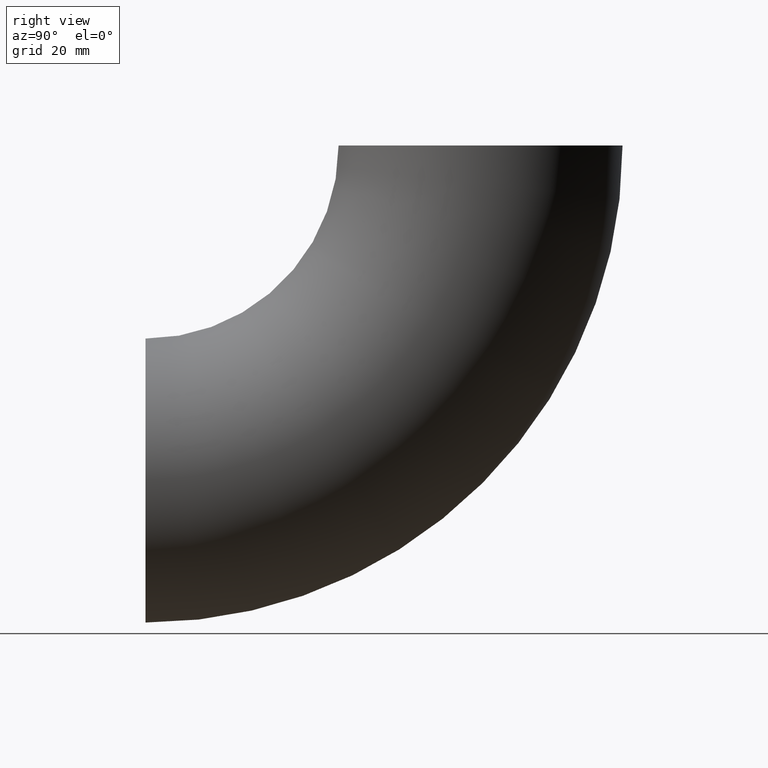
[diagram: clean part render]
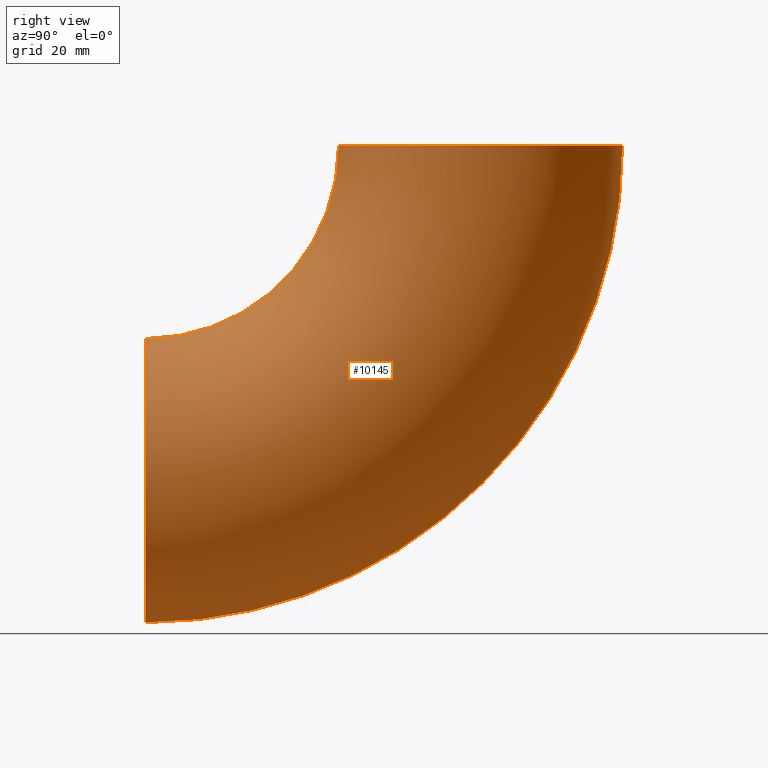
[diagram: same view with one face highlighted and labeled with its STEP entity id]
A machine part, right view. The second image highlights one B-rep face of the part: STEP entity #10145.
In plain terms, the highlighted toroidal blend (fillet) surface has major radius 57 mm and minor (blend) radius 24.15 mm.
Its self-contained STEP definition (entity closure, byte-faithful):
#124 = CARTESIAN_POINT ( 'NONE',  ( 0.0000000000000000000, 57.00000000000000000, -3.490243377569956500E-015 ) ) ;
#188 = VERTEX_POINT ( 'NONE', #1510 ) ;
#420 = ORIENTED_EDGE ( 'NONE', *, *, #1777, .F. ) ;
#450 = DIRECTION ( 'NONE',  ( -1.000000000000000000, -0.0000000000000000000, -0.0000000000000000000 ) ) ;
#1185 = CARTESIAN_POINT ( 'NONE',  ( 0.0000000000000000000, 0.0000000000000000000, 0.0000000000000000000 ) ) ;
#1425 = CARTESIAN_POINT ( 'NONE',  ( 0.0000000000000000000, 0.0000000000000000000, -57.00000000000000000 ) ) ;
#1510 = CARTESIAN_POINT ( 'NONE',  ( 0.0000000000000000000, 81.15000000000000600, -4.969004387540385400E-015 ) ) ;
#1516 = AXIS2_PLACEMENT_3D ( 'NONE', #6573, #5723, #1637 ) ;
#1623 = EDGE_CURVE ( 'NONE', #5979, #1633, #5101, .T. ) ;
#1633 = VERTEX_POINT ( 'NONE', #4203 ) ;
#1637 = DIRECTION ( 'NONE',  ( 0.0000000000000000000, 0.0000000000000000000, 1.000000000000000000 ) ) ;
#1727 = DIRECTION ( 'NONE',  ( 0.0000000000000000000, 6.123233995736766000E-017, 1.000000000000000000 ) ) ;
#1760 = DIRECTION ( 'NONE',  ( 0.0000000000000000000, 0.0000000000000000000, 1.000000000000000000 ) ) ;
#1777 = EDGE_CURVE ( 'NONE', #5979, #188, #5485, .T. ) ;
#1840 = DIRECTION ( 'NONE',  ( 0.0000000000000000000, -1.000000000000000000, 6.123233995736767300E-017 ) ) ;
#1841 = DIRECTION ( 'NONE',  ( -1.000000000000000000, -0.0000000000000000000, -0.0000000000000000000 ) ) ;
#2836 = DIRECTION ( 'NONE',  ( 0.0000000000000000000, 0.0000000000000000000, 1.000000000000000000 ) ) ;
#3206 = VERTEX_POINT ( 'NONE', #9212 ) ;
#3309 = AXIS2_PLACEMENT_3D ( 'NONE', #1425, #7180, #4863 ) ;
#3466 = ORIENTED_EDGE ( 'NONE', *, *, #4484, .T. ) ;
#4203 = CARTESIAN_POINT ( 'NONE',  ( 0.0000000000000000000, 0.0000000000000000000, -32.85000000000000100 ) ) ;
#4251 = CARTESIAN_POINT ( 'NONE',  ( 0.0000000000000000000, 0.0000000000000000000, 0.0000000000000000000 ) ) ;
#4484 = EDGE_CURVE ( 'NONE', #1633, #3206, #8133, .T. ) ;
#4648 = AXIS2_PLACEMENT_3D ( 'NONE', #1185, #450, #2836 ) ;
#4863 = DIRECTION ( 'NONE',  ( 0.0000000000000000000, 0.0000000000000000000, 1.000000000000000000 ) ) ;
#4909 = AXIS2_PLACEMENT_3D ( 'NONE', #4251, #1841, #1760 ) ;
#5101 = CIRCLE ( 'NONE', #1516, 32.85000000000000100 ) ;
#5485 = CIRCLE ( 'NONE', #9484, 24.14999999999999900 ) ;
#5723 = DIRECTION ( 'NONE',  ( -1.000000000000000000, -0.0000000000000000000, -0.0000000000000000000 ) ) ;
#5979 = VERTEX_POINT ( 'NONE', #10712 ) ;
#6573 = CARTESIAN_POINT ( 'NONE',  ( 2.957522019940857900E-015, 0.0000000000000000000, 0.0000000000000000000 ) ) ;
#6852 = TOROIDAL_SURFACE ( 'NONE', #4648, 57.00000000000000000, 24.14999999999999900 ) ;
#7180 = DIRECTION ( 'NONE',  ( 0.0000000000000000000, 1.000000000000000000, 0.0000000000000000000 ) ) ;
#8133 = CIRCLE ( 'NONE', #3309, 24.14999999999999900 ) ;
#8547 = CIRCLE ( 'NONE', #4909, 81.15000000000000600 ) ;
#8570 = ORIENTED_EDGE ( 'NONE', *, *, #9724, .F. ) ;
#9000 = ORIENTED_EDGE ( 'NONE', *, *, #1623, .T. ) ;
#9061 = FACE_OUTER_BOUND ( 'NONE', #9348, .T. ) ;
#9212 = CARTESIAN_POINT ( 'NONE',  ( 0.0000000000000000000, 0.0000000000000000000, -81.15000000000000600 ) ) ;
#9348 = EDGE_LOOP ( 'NONE', ( #8570, #420, #9000, #3466 ) ) ;
#9484 = AXIS2_PLACEMENT_3D ( 'NONE', #124, #1727, #1840 ) ;
#9724 = EDGE_CURVE ( 'NONE', #188, #3206, #8547, .T. ) ;
#10145 = ADVANCED_FACE ( 'NONE', ( #9061 ), #6852, .T. ) ;
#10712 = CARTESIAN_POINT ( 'NONE',  ( 0.0000000000000000000, 32.85000000000000100, -2.011482367599527500E-015 ) ) ;